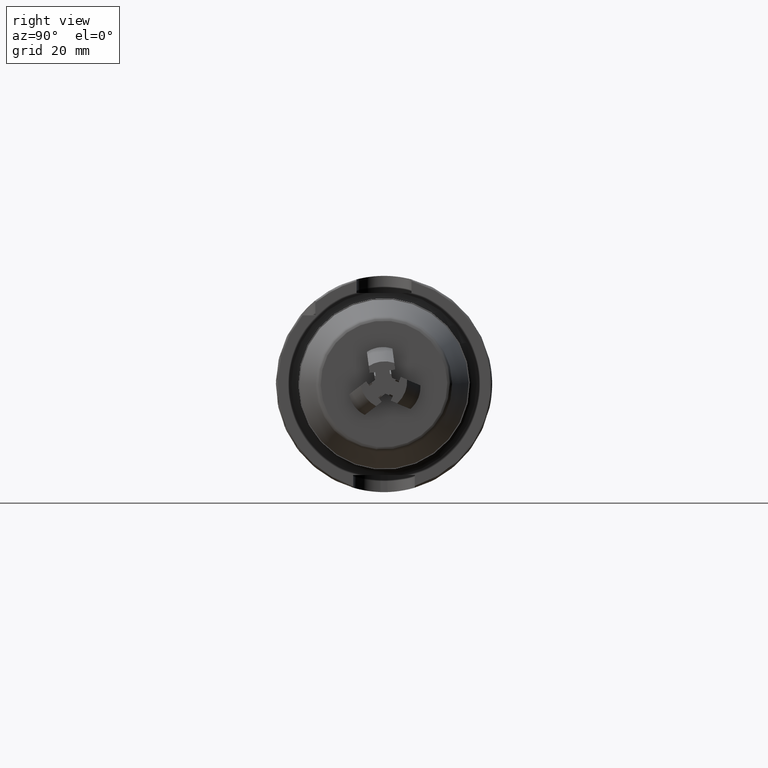
[diagram: clean part render]
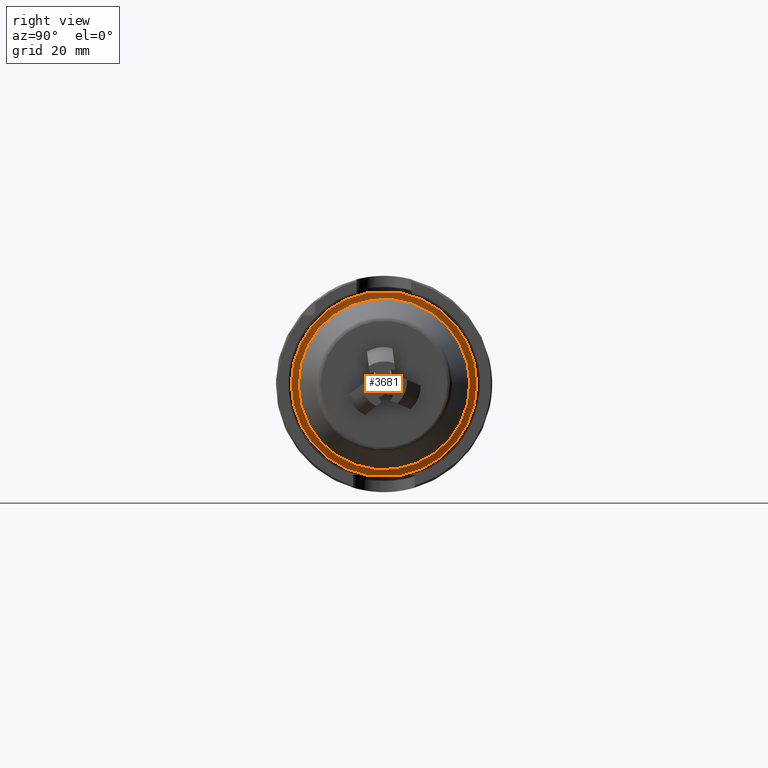
[diagram: same view with one face highlighted and labeled with its STEP entity id]
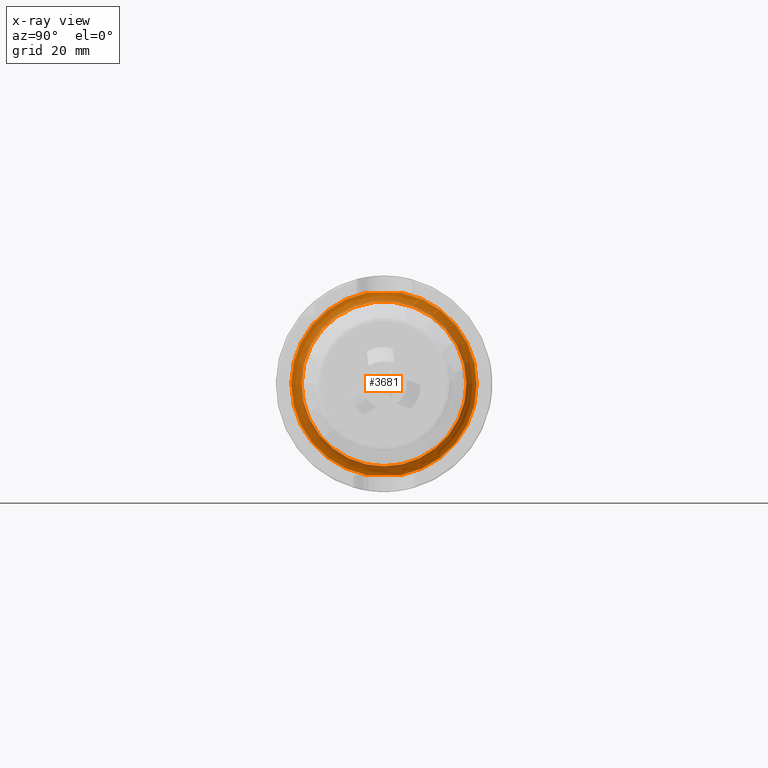
[diagram: x-ray of the same camera — body ghosted, the highlighted face saturated]
A machine part, right view. The second image highlights one B-rep face of the part: STEP entity #3681.
The next image is the same camera in x-ray: the body ghosted, the highlighted face saturated — about 32% of this face is hidden behind the body in this view.
In plain terms, the highlighted toroidal blend (fillet) surface has major radius 27 mm and minor (blend) radius 3 mm.
Its self-contained STEP definition (entity closure, byte-faithful):
#759=FACE_OUTER_BOUND('',#968,.T.);
#968=EDGE_LOOP('',(#2490,#2491,#2492,#2493,#2494,#2495,#2496,#2497,#2498,
#2499));
#1197=B_SPLINE_CURVE_WITH_KNOTS('',3,(#5716,#5717,#5718,#5719,#5720,#5721),
 .UNSPECIFIED.,.F.,.F.,(4,2,4),(2.86714446583863,3.20861762397256,3.35204688572015),
 .UNSPECIFIED.);
#1198=B_SPLINE_CURVE_WITH_KNOTS('',3,(#5725,#5726,#5727,#5728,#5729,#5730,
#5731,#5732,#5733,#5734),.UNSPECIFIED.,.F.,.F.,(4,2,2,2,4),(2.38224204595711,
2.5256713077047,2.86714446583863,3.20861762397256,3.35204688572015),
 .UNSPECIFIED.);
#1199=B_SPLINE_CURVE_WITH_KNOTS('',3,(#5737,#5738,#5739,#5740,#5741,#5742),
 .UNSPECIFIED.,.F.,.F.,(4,2,4),(2.38224204595711,2.5256713077047,2.86714446583863),
 .UNSPECIFIED.);
#1272=CIRCLE('',#4059,24.);
#1273=CIRCLE('',#4060,3.);
#1274=CIRCLE('',#4061,27.);
#1275=CIRCLE('',#4062,27.);
#1276=CIRCLE('',#4063,24.);
#1277=CIRCLE('',#4064,24.);
#1515=VERTEX_POINT('',#5710);
#1516=VERTEX_POINT('',#5711);
#1517=VERTEX_POINT('',#5713);
#1518=VERTEX_POINT('',#5715);
#1519=VERTEX_POINT('',#5722);
#1520=VERTEX_POINT('',#5724);
#1521=VERTEX_POINT('',#5735);
#1522=VERTEX_POINT('',#5743);
#1910=EDGE_CURVE('',#1515,#1516,#1272,.T.);
#1911=EDGE_CURVE('',#1516,#1517,#1273,.T.);
#1912=EDGE_CURVE('',#1518,#1517,#1197,.F.);
#1913=EDGE_CURVE('',#1518,#1519,#1274,.T.);
#1914=EDGE_CURVE('',#1520,#1519,#1198,.F.);
#1915=EDGE_CURVE('',#1520,#1521,#1275,.T.);
#1916=EDGE_CURVE('',#1517,#1521,#1199,.F.);
#1917=EDGE_CURVE('',#1516,#1522,#1276,.T.);
#1918=EDGE_CURVE('',#1522,#1515,#1277,.T.);
#2490=ORIENTED_EDGE('',*,*,#1910,.T.);
#2491=ORIENTED_EDGE('',*,*,#1911,.T.);
#2492=ORIENTED_EDGE('',*,*,#1912,.F.);
#2493=ORIENTED_EDGE('',*,*,#1913,.T.);
#2494=ORIENTED_EDGE('',*,*,#1914,.F.);
#2495=ORIENTED_EDGE('',*,*,#1915,.T.);
#2496=ORIENTED_EDGE('',*,*,#1916,.F.);
#2497=ORIENTED_EDGE('',*,*,#1911,.F.);
#2498=ORIENTED_EDGE('',*,*,#1917,.T.);
#2499=ORIENTED_EDGE('',*,*,#1918,.T.);
#3650=TOROIDAL_SURFACE('',#4058,27.,3.);
#3681=ADVANCED_FACE('',(#759),#3650,.F.);
#4058=AXIS2_PLACEMENT_3D('',#5709,#4532,#4533);
#4059=AXIS2_PLACEMENT_3D('',#5712,#4534,#4535);
#4060=AXIS2_PLACEMENT_3D('',#5714,#4536,#4537);
#4061=AXIS2_PLACEMENT_3D('',#5723,#4538,#4539);
#4062=AXIS2_PLACEMENT_3D('',#5736,#4540,#4541);
#4063=AXIS2_PLACEMENT_3D('',#5744,#4542,#4543);
#4064=AXIS2_PLACEMENT_3D('',#5745,#4544,#4545);
#4532=DIRECTION('center_axis',(-1.,0.,0.));
#4533=DIRECTION('ref_axis',(0.,0.,1.));
#4534=DIRECTION('center_axis',(-1.,0.,0.));
#4535=DIRECTION('ref_axis',(0.,-1.,-1.22464679914735E-16));
#4536=DIRECTION('center_axis',(0.,-1.,1.22464679914735E-16));
#4537=DIRECTION('ref_axis',(0.,-1.22464679914735E-16,-1.));
#4538=DIRECTION('center_axis',(1.,0.,0.));
#4539=DIRECTION('ref_axis',(0.,-1.,-1.22464679914735E-16));
#4540=DIRECTION('center_axis',(1.,0.,0.));
#4541=DIRECTION('ref_axis',(0.,-1.,-1.22464679914735E-16));
#4542=DIRECTION('center_axis',(-1.,0.,0.));
#4543=DIRECTION('ref_axis',(0.,-1.,-1.22464679914735E-16));
#4544=DIRECTION('center_axis',(-1.,0.,0.));
#4545=DIRECTION('ref_axis',(0.,-1.,-1.22464679914735E-16));
#5709=CARTESIAN_POINT('Origin',(29.,0.,0.));
#5710=CARTESIAN_POINT('',(29.,24.,0.));
#5711=CARTESIAN_POINT('',(29.,-2.93915231795365E-15,-24.));
#5712=CARTESIAN_POINT('Origin',(29.,0.,0.));
#5713=CARTESIAN_POINT('',(26.0419601084502,-2.10837958214375E-15,-26.5));
#5714=CARTESIAN_POINT('Origin',(29.,-3.30654635769785E-15,-27.));
#5715=CARTESIAN_POINT('',(26.,5.17204021639429,-26.5));
#5716=CARTESIAN_POINT('Ctrl Pts',(26.0419601084502,-1.11022302462516E-15,
-26.5));
#5717=CARTESIAN_POINT('Ctrl Pts',(26.0419601084502,1.13824386044644,-26.5));
#5718=CARTESIAN_POINT('Ctrl Pts',(26.0235138889301,2.50401193028876,-26.5));
#5719=CARTESIAN_POINT('Ctrl Pts',(26.0050457383192,4.12024781885524,-26.5));
#5720=CARTESIAN_POINT('Ctrl Pts',(26.,4.69394267723567,-26.5));
#5721=CARTESIAN_POINT('Ctrl Pts',(26.,5.17204021639429,-26.5));
#5722=CARTESIAN_POINT('',(26.,5.17204021639429,26.5));
#5723=CARTESIAN_POINT('Origin',(26.,0.,0.));
#5724=CARTESIAN_POINT('',(26.,-5.17204021639429,26.5));
#5725=CARTESIAN_POINT('Ctrl Pts',(26.,5.17204021639429,26.5));
#5726=CARTESIAN_POINT('Ctrl Pts',(26.,4.69394267723567,26.5));
#5727=CARTESIAN_POINT('Ctrl Pts',(26.0050457383192,4.12024781885524,26.5));
#5728=CARTESIAN_POINT('Ctrl Pts',(26.0235138889301,2.50401193028876,26.5));
#5729=CARTESIAN_POINT('Ctrl Pts',(26.0419601084502,1.13824386044644,26.5));
#5730=CARTESIAN_POINT('Ctrl Pts',(26.0419601084502,-1.13824386044644,26.5));
#5731=CARTESIAN_POINT('Ctrl Pts',(26.0235138889301,-2.50401193028876,26.5));
#5732=CARTESIAN_POINT('Ctrl Pts',(26.0050457383192,-4.12024781885524,26.5));
#5733=CARTESIAN_POINT('Ctrl Pts',(26.,-4.69394267723567,26.5));
#5734=CARTESIAN_POINT('Ctrl Pts',(26.,-5.17204021639429,26.5));
#5735=CARTESIAN_POINT('',(26.,-5.17204021639429,-26.5));
#5736=CARTESIAN_POINT('Origin',(26.,0.,0.));
#5737=CARTESIAN_POINT('Ctrl Pts',(26.,-5.17204021639429,-26.5));
#5738=CARTESIAN_POINT('Ctrl Pts',(26.,-4.69394267723566,-26.5));
#5739=CARTESIAN_POINT('Ctrl Pts',(26.0050457383192,-4.12024781885524,-26.5));
#5740=CARTESIAN_POINT('Ctrl Pts',(26.0235138889301,-2.50401193028876,-26.5));
#5741=CARTESIAN_POINT('Ctrl Pts',(26.0419601084502,-1.13824386044644,-26.5));
#5742=CARTESIAN_POINT('Ctrl Pts',(26.0419601084502,-1.2490009027033E-15,
-26.5));
#5743=CARTESIAN_POINT('',(29.,-24.,-2.93915231795365E-15));
#5744=CARTESIAN_POINT('Origin',(29.,0.,0.));
#5745=CARTESIAN_POINT('Origin',(29.,0.,0.));